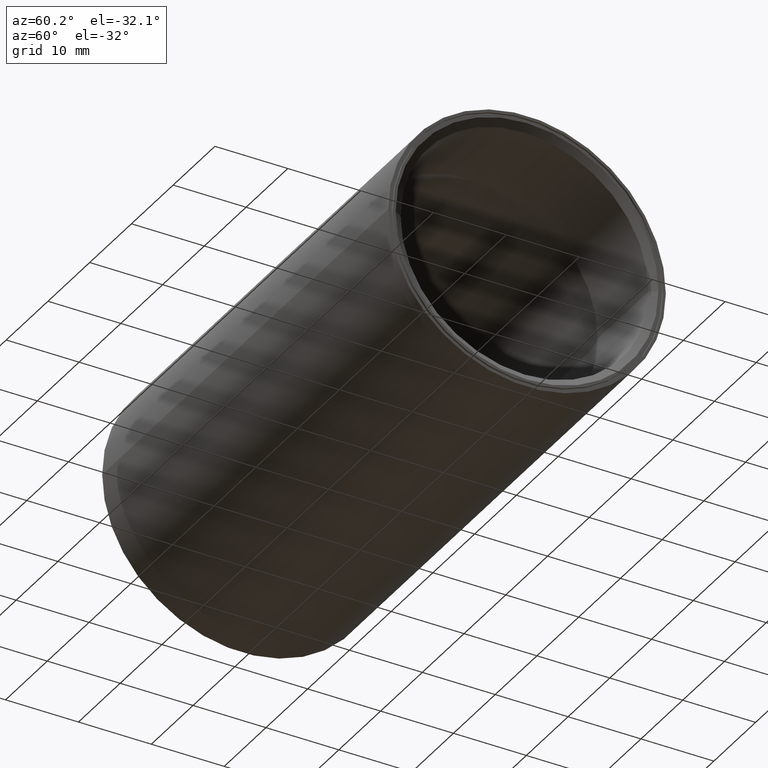
[diagram: clean part render]
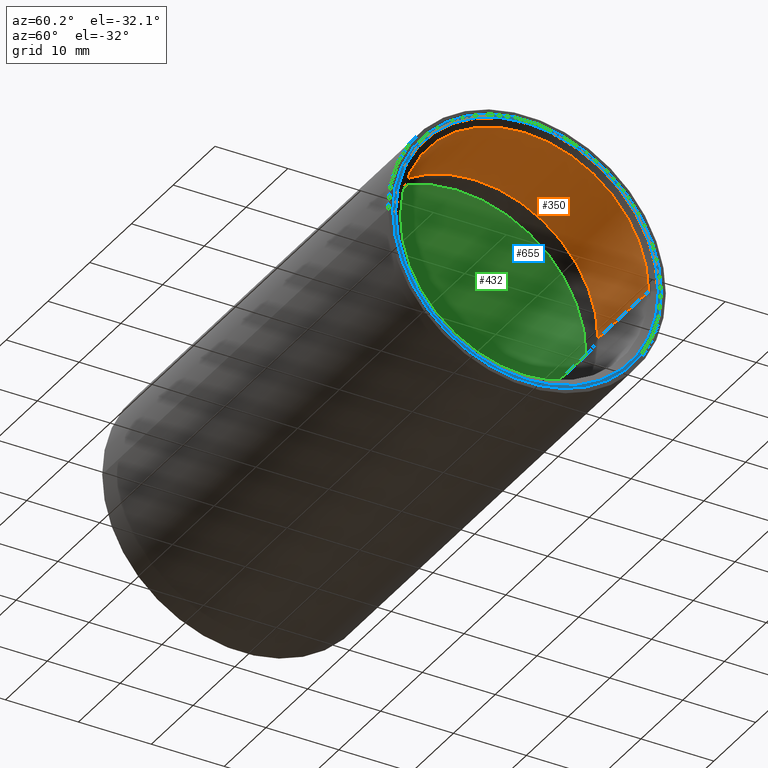
[diagram: same view with three faces highlighted in distinct colors, each labeled with its STEP entity id]
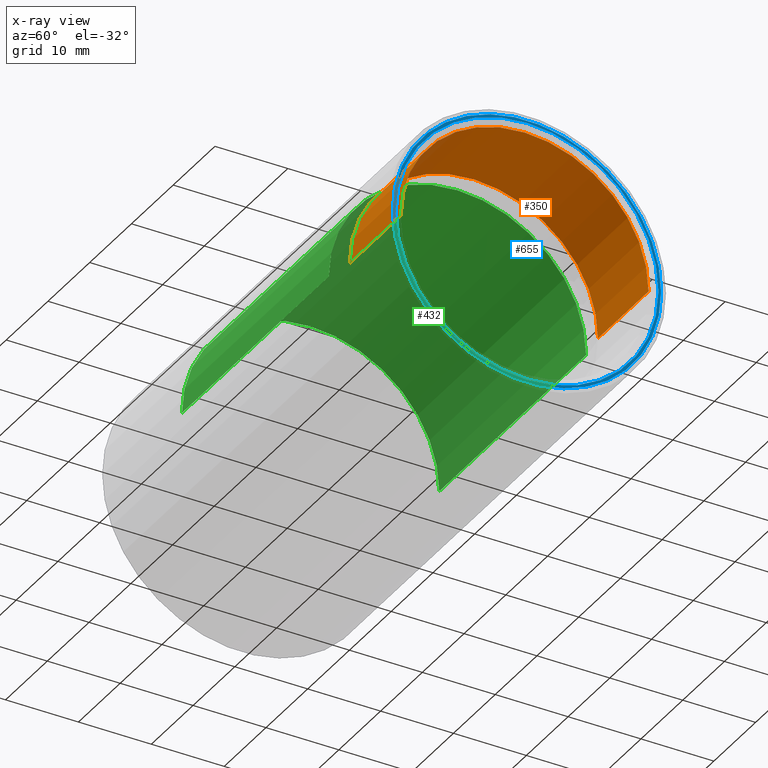
[diagram: x-ray of the same camera — body ghosted, the three highlighted faces saturated]
A machine part, auxiliary view with three faces highlighted in distinct colors.
The next image is the same camera in x-ray (body ghosted, the three faces saturated) — at least one of them is partly hidden behind the body in this view.
Their STEP definitions:

[orange] entity #350 — the highlighted cylindrical surface (partial cylindrical patch) has radius 17.018 mm, axis along (1, 0, -0).
#17 = EDGE_LOOP ( 'NONE', ( #453, #528, #31, #39 ) ) ;
#20 = EDGE_CURVE ( 'NONE', #354, #591, #434, .T. ) ;
#31 = ORIENTED_EDGE ( 'NONE', *, *, #492, .T. ) ;
#39 = ORIENTED_EDGE ( 'NONE', *, *, #578, .T. ) ;
#75 = AXIS2_PLACEMENT_3D ( 'NONE', #294, #605, #609 ) ;
#99 = DIRECTION ( 'NONE',  ( 1.000000000000000000, 1.139601642983670200E-016, -0.0000000000000000000 ) ) ;
#108 = CARTESIAN_POINT ( 'NONE',  ( -0.02309401076758469500, 0.6700000000004026100, 0.0000000000000000000 ) ) ;
#186 = AXIS2_PLACEMENT_3D ( 'NONE', #664, #534, #263 ) ;
#210 = VECTOR ( 'NONE', #99, 39.37007874015748100 ) ;
#263 = DIRECTION ( 'NONE',  ( -1.019346266292023000E-016, 1.000000000000000000, 0.0000000000000000000 ) ) ;
#272 = CARTESIAN_POINT ( 'NONE',  ( -0.02309401076758461900, -2.631797261382200400E-018, 0.0000000000000000000 ) ) ;
#294 = CARTESIAN_POINT ( 'NONE',  ( 0.0000000000000000000, 0.0000000000000000000, 0.0000000000000000000 ) ) ;
#316 = DIRECTION ( 'NONE',  ( -1.146764549578525900E-016, 1.000000000000000000, 0.0000000000000000000 ) ) ;
#336 = CIRCLE ( 'NONE', #348, 0.6700000000004026100 ) ;
#340 = LINE ( 'NONE', #564, #210 ) ;
#341 = CARTESIAN_POINT ( 'NONE',  ( -0.4999999999999998300, -0.6700000000004026100, 8.358214404185617900E-017 ) ) ;
#348 = AXIS2_PLACEMENT_3D ( 'NONE', #272, #637, #316 ) ;
#350 = ADVANCED_FACE ( 'NONE', ( #661 ), #391, .F. ) ;
#354 = VERTEX_POINT ( 'NONE', #341 ) ;
#391 = CYLINDRICAL_SURFACE ( 'NONE', #75, 0.6700000000004026100 ) ;
#403 = VERTEX_POINT ( 'NONE', #667 ) ;
#418 = DIRECTION ( 'NONE',  ( 1.000000000000000000, 1.139601642983670200E-016, -0.0000000000000000000 ) ) ;
#434 = LINE ( 'NONE', #580, #557 ) ;
#440 = EDGE_CURVE ( 'NONE', #403, #354, #511, .T. ) ;
#453 = ORIENTED_EDGE ( 'NONE', *, *, #20, .F. ) ;
#492 = EDGE_CURVE ( 'NONE', #403, #565, #340, .T. ) ;
#511 = CIRCLE ( 'NONE', #186, 0.6700000000004026100 ) ;
#528 = ORIENTED_EDGE ( 'NONE', *, *, #440, .F. ) ;
#534 = DIRECTION ( 'NONE',  ( 1.000000000000000000, 1.139601642983670200E-016, -0.0000000000000000000 ) ) ;
#540 = CARTESIAN_POINT ( 'NONE',  ( -0.02309401076758454300, -0.6700000000004026100, 8.205133554292197200E-017 ) ) ;
#557 = VECTOR ( 'NONE', #418, 39.37007874015748100 ) ;
#564 = CARTESIAN_POINT ( 'NONE',  ( -7.635331007995178600E-017, 0.6700000000004026100, 0.0000000000000000000 ) ) ;
#565 = VERTEX_POINT ( 'NONE', #108 ) ;
#578 = EDGE_CURVE ( 'NONE', #565, #591, #336, .T. ) ;
#580 = CARTESIAN_POINT ( 'NONE',  ( 7.635331007995178600E-017, -0.6700000000004026100, 8.205133554292197200E-017 ) ) ;
#591 = VERTEX_POINT ( 'NONE', #540 ) ;
#605 = DIRECTION ( 'NONE',  ( 1.000000000000000000, 1.139601642983670200E-016, -0.0000000000000000000 ) ) ;
#609 = DIRECTION ( 'NONE',  ( -1.139601642983670200E-016, 1.000000000000000000, 0.0000000000000000000 ) ) ;
#637 = DIRECTION ( 'NONE',  ( 1.000000000000000000, 1.139601642983670200E-016, 0.0000000000000000000 ) ) ;
#661 = FACE_OUTER_BOUND ( 'NONE', #17, .T. ) ;
#664 = CARTESIAN_POINT ( 'NONE',  ( -0.4999999999999999400, -5.698008214918349800E-017, 0.0000000000000000000 ) ) ;
#667 = CARTESIAN_POINT ( 'NONE',  ( -0.5000000000000000000, 0.6700000000004026100, 0.0000000000000000000 ) ) ;

[blue] entity #655 — the highlighted planar face has unit normal (1, 0, -0).
#5 = CARTESIAN_POINT ( 'NONE',  ( -8.727045640245106100E-018, 0.7100000000004025300, 0.0000000000000000000 ) ) ;
#29 = DIRECTION ( 'NONE',  ( -1.139601642983670200E-016, 1.000000000000000000, 0.0000000000000000000 ) ) ;
#41 = FACE_BOUND ( 'NONE', #115, .T. ) ;
#81 = CIRCLE ( 'NONE', #285, 0.7250000000004027700 ) ;
#84 = VERTEX_POINT ( 'NONE', #353 ) ;
#101 = DIRECTION ( 'NONE',  ( 1.000000000000000000, 1.139601642983670200E-016, 0.0000000000000000000 ) ) ;
#115 = EDGE_LOOP ( 'NONE', ( #614, #194 ) ) ;
#118 = CARTESIAN_POINT ( 'NONE',  ( -8.262111911636198800E-017, 0.7250000000004027700, 0.0000000000000000000 ) ) ;
#120 = ORIENTED_EDGE ( 'NONE', *, *, #603, .T. ) ;
#156 = CARTESIAN_POINT ( 'NONE',  ( 2.000732498201575200E-050, -1.755641991672913400E-034, 0.0000000000000000000 ) ) ;
#163 = DIRECTION ( 'NONE',  ( 1.000000000000000000, 1.139601642983670200E-016, -0.0000000000000000000 ) ) ;
#176 = FACE_OUTER_BOUND ( 'NONE', #645, .T. ) ;
#194 = ORIENTED_EDGE ( 'NONE', *, *, #395, .T. ) ;
#195 = CARTESIAN_POINT ( 'NONE',  ( 8.262111911636198800E-017, -0.7250000000004027700, 8.878689293823242400E-017 ) ) ;
#202 = DIRECTION ( 'NONE',  ( -1.000000000000000000, -1.139601642983670200E-016, 0.0000000000000000000 ) ) ;
#212 = VERTEX_POINT ( 'NONE', #118 ) ;
#226 = VERTEX_POINT ( 'NONE', #5 ) ;
#240 = EDGE_CURVE ( 'NONE', #226, #84, #300, .T. ) ;
#264 = AXIS2_PLACEMENT_3D ( 'NONE', #156, #101, #628 ) ;
#285 = AXIS2_PLACEMENT_3D ( 'NONE', #468, #684, #358 ) ;
#297 = ORIENTED_EDGE ( 'NONE', *, *, #482, .T. ) ;
#300 = CIRCLE ( 'NONE', #446, 0.7100000000004025300 ) ;
#326 = VERTEX_POINT ( 'NONE', #195 ) ;
#353 = CARTESIAN_POINT ( 'NONE',  ( 1.534764289835705100E-016, -0.7100000000004025300, 8.694992273951137400E-017 ) ) ;
#358 = DIRECTION ( 'NONE',  ( 0.0000000000000000000, 0.0000000000000000000, -1.000000000000000000 ) ) ;
#376 = CIRCLE ( 'NONE', #518, 0.7100000000004025300 ) ;
#395 = EDGE_CURVE ( 'NONE', #84, #226, #376, .T. ) ;
#397 = DIRECTION ( 'NONE',  ( -1.000000000000000000, -1.139601642983670200E-016, 0.0000000000000000000 ) ) ;
#413 = DIRECTION ( 'NONE',  ( -1.139601642983670200E-016, 1.000000000000000000, 0.0000000000000000000 ) ) ;
#446 = AXIS2_PLACEMENT_3D ( 'NONE', #568, #202, #524 ) ;
#454 = PLANE ( 'NONE',  #687 ) ;
#468 = CARTESIAN_POINT ( 'NONE',  ( 2.000732498201575200E-050, -1.755641991672913400E-034, 0.0000000000000000000 ) ) ;
#479 = CARTESIAN_POINT ( 'NONE',  ( -1.309543155211255600E-017, 0.7500000000000001100, 0.0000000000000000000 ) ) ;
#482 = EDGE_CURVE ( 'NONE', #326, #212, #81, .T. ) ;
#518 = AXIS2_PLACEMENT_3D ( 'NONE', #669, #397, #29 ) ;
#524 = DIRECTION ( 'NONE',  ( -1.139601642983670200E-016, 1.000000000000000000, 0.0000000000000000000 ) ) ;
#542 = CIRCLE ( 'NONE', #264, 0.7250000000004027700 ) ;
#568 = CARTESIAN_POINT ( 'NONE',  ( 7.237469167166270700E-017, 8.072267554779046100E-033, 0.0000000000000000000 ) ) ;
#603 = EDGE_CURVE ( 'NONE', #212, #326, #542, .T. ) ;
#614 = ORIENTED_EDGE ( 'NONE', *, *, #240, .T. ) ;
#628 = DIRECTION ( 'NONE',  ( 0.0000000000000000000, 0.0000000000000000000, -1.000000000000000000 ) ) ;
#645 = EDGE_LOOP ( 'NONE', ( #120, #297 ) ) ;
#655 = ADVANCED_FACE ( 'NONE', ( #41, #176 ), #454, .T. ) ;
#669 = CARTESIAN_POINT ( 'NONE',  ( 7.237469167166270700E-017, 8.072267554779046100E-033, 0.0000000000000000000 ) ) ;
#684 = DIRECTION ( 'NONE',  ( 1.000000000000000000, 1.139601642983670200E-016, 0.0000000000000000000 ) ) ;
#687 = AXIS2_PLACEMENT_3D ( 'NONE', #479, #163, #413 ) ;

[green] entity #432 — the highlighted cylindrical surface (partial cylindrical patch) has radius 17.653 mm, axis along (1, 0, -0).
#3 = ORIENTED_EDGE ( 'NONE', *, *, #361, .T. ) ;
#33 = AXIS2_PLACEMENT_3D ( 'NONE', #517, #197, #560 ) ;
#70 = VERTEX_POINT ( 'NONE', #261 ) ;
#85 = DIRECTION ( 'NONE',  ( -1.139601642983670200E-016, 1.000000000000000000, 0.0000000000000000000 ) ) ;
#90 = CARTESIAN_POINT ( 'NONE',  ( -0.6561249499599602900, -0.6950000000004030700, 8.511295254079037300E-017 ) ) ;
#105 = EDGE_CURVE ( 'NONE', #337, #70, #549, .T. ) ;
#109 = DIRECTION ( 'NONE',  ( 1.000000000000000000, 1.139601642983670200E-016, -0.0000000000000000000 ) ) ;
#122 = DIRECTION ( 'NONE',  ( 0.0000000000000000000, 1.000000000000000000, 0.0000000000000000000 ) ) ;
#146 = DIRECTION ( 'NONE',  ( 1.000000000000000000, 1.139601642983670200E-016, -0.0000000000000000000 ) ) ;
#187 = LINE ( 'NONE', #191, #555 ) ;
#191 = CARTESIAN_POINT ( 'NONE',  ( 7.920231418741098500E-017, -0.6950000000004027400, 8.511295254079037300E-017 ) ) ;
#197 = DIRECTION ( 'NONE',  ( 1.000000000000000000, 1.139601642983670200E-016, -0.0000000000000000000 ) ) ;
#219 = AXIS2_PLACEMENT_3D ( 'NONE', #344, #458, #85 ) ;
#242 = DIRECTION ( 'NONE',  ( 1.000000000000000000, 1.139601642983670200E-016, -0.0000000000000000000 ) ) ;
#244 = CARTESIAN_POINT ( 'NONE',  ( -2.040875050040042100, 0.6950000000004025200, 0.0000000000000000000 ) ) ;
#261 = CARTESIAN_POINT ( 'NONE',  ( -2.040875050040042100, -0.6950000000004029600, 8.511295254079034800E-017 ) ) ;
#293 = EDGE_CURVE ( 'NONE', #70, #624, #187, .T. ) ;
#305 = CARTESIAN_POINT ( 'NONE',  ( -0.6561249499599606200, 0.6950000000004027400, 0.0000000000000000000 ) ) ;
#313 = ORIENTED_EDGE ( 'NONE', *, *, #293, .F. ) ;
#324 = ORIENTED_EDGE ( 'NONE', *, *, #105, .F. ) ;
#337 = VERTEX_POINT ( 'NONE', #244 ) ;
#344 = CARTESIAN_POINT ( 'NONE',  ( 0.0000000000000000000, 0.0000000000000000000, 0.0000000000000000000 ) ) ;
#357 = CYLINDRICAL_SURFACE ( 'NONE', #219, 0.6950000000004027400 ) ;
#361 = EDGE_CURVE ( 'NONE', #476, #624, #530, .T. ) ;
#384 = EDGE_LOOP ( 'NONE', ( #313, #324, #678, #3 ) ) ;
#425 = CARTESIAN_POINT ( 'NONE',  ( -2.040875050040042100, -2.325784560150012000E-016, 0.0000000000000000000 ) ) ;
#432 = ADVANCED_FACE ( 'NONE', ( #662 ), #357, .F. ) ;
#436 = VECTOR ( 'NONE', #146, 39.37007874015748100 ) ;
#458 = DIRECTION ( 'NONE',  ( 1.000000000000000000, 1.139601642983670200E-016, -0.0000000000000000000 ) ) ;
#475 = CARTESIAN_POINT ( 'NONE',  ( -7.920231418741098500E-017, 0.6950000000004027400, 0.0000000000000000000 ) ) ;
#476 = VERTEX_POINT ( 'NONE', #305 ) ;
#517 = CARTESIAN_POINT ( 'NONE',  ( -0.6561249499599604000, -7.477210709769493600E-017, 0.0000000000000000000 ) ) ;
#530 = CIRCLE ( 'NONE', #33, 0.6950000000004029600 ) ;
#549 = CIRCLE ( 'NONE', #658, 0.6950000000004027400 ) ;
#555 = VECTOR ( 'NONE', #242, 39.37007874015748100 ) ;
#560 = DIRECTION ( 'NONE',  ( -1.965358268822071500E-016, 1.000000000000000000, 0.0000000000000000000 ) ) ;
#572 = LINE ( 'NONE', #475, #436 ) ;
#624 = VERTEX_POINT ( 'NONE', #90 ) ;
#658 = AXIS2_PLACEMENT_3D ( 'NONE', #425, #109, #122 ) ;
#662 = FACE_OUTER_BOUND ( 'NONE', #384, .T. ) ;
#678 = ORIENTED_EDGE ( 'NONE', *, *, #679, .T. ) ;
#679 = EDGE_CURVE ( 'NONE', #337, #476, #572, .T. ) ;